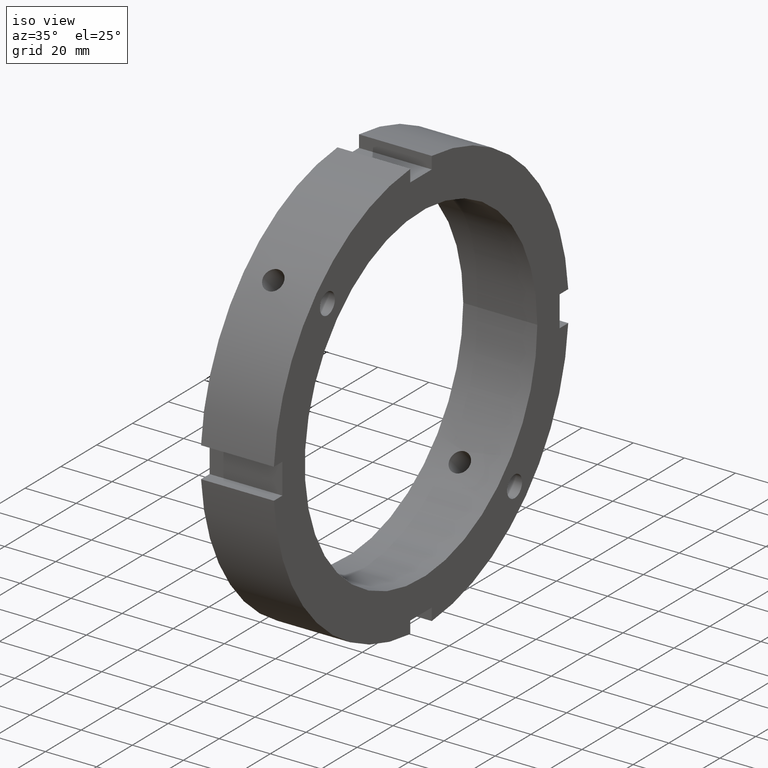
[diagram: clean part render]
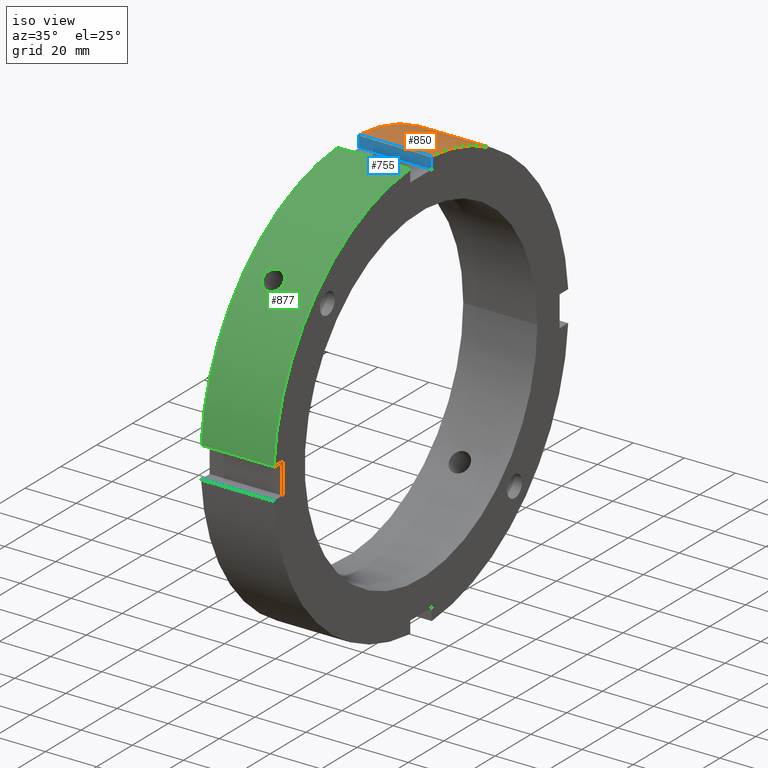
[diagram: same view with three faces highlighted in distinct colors, each labeled with its STEP entity id]
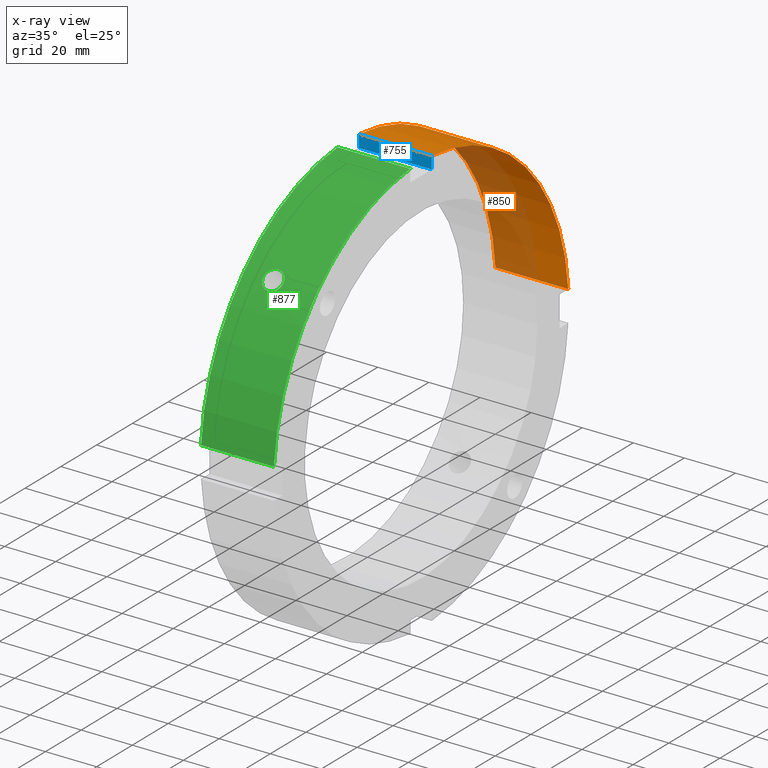
[diagram: x-ray of the same camera — body ghosted, the three highlighted faces saturated]
A machine part, iso view with three faces highlighted in distinct colors.
The next image is the same camera in x-ray (body ghosted, the three faces saturated) — at least one of them is partly hidden behind the body in this view.
Their STEP definitions:

[orange] entity #850 — the highlighted cylindrical surface (partial cylindrical patch) has radius 82.5 mm, axis along (1, 0, 0).
#723=CARTESIAN_POINT('',(0.499999999999976,6.000000000000002,82.281528911414853));
#724=VERTEX_POINT('',#723);
#739=CARTESIAN_POINT('',(28.999999999999986,6.000000000000002,82.281528911414853));
#740=VERTEX_POINT('',#739);
#747=CARTESIAN_POINT('',(0.499999999999975,6.000000000000002,82.281528911414853));
#748=DIRECTION('',(1.0,0.0,0.0));
#749=VECTOR('',#748,28.500000000000011);
#750=LINE('',#747,#749);
#751=EDGE_CURVE('',#724,#740,#750,.T.);
#818=CARTESIAN_POINT('',(14.74999999999998,0.0,0.0));
#819=DIRECTION('',(1.0,0.0,0.0));
#820=DIRECTION('',(0.0,1.0,0.0));
#821=AXIS2_PLACEMENT_3D('',#818,#819,#820);
#822=CYLINDRICAL_SURFACE('',#821,82.5);
#823=ORIENTED_EDGE('',*,*,#751,.T.);
#824=CARTESIAN_POINT('',(28.999999999999986,82.281528911414853,5.999999999999996));
#825=VERTEX_POINT('',#824);
#826=CARTESIAN_POINT('',(28.999999999999986,0.0,0.0));
#827=DIRECTION('',(1.0,0.0,0.0));
#828=DIRECTION('',(0.0,1.0,0.0));
#829=AXIS2_PLACEMENT_3D('',#826,#827,#828);
#830=CIRCLE('',#829,82.5);
#831=EDGE_CURVE('',#825,#740,#830,.T.);
#832=ORIENTED_EDGE('',*,*,#831,.F.);
#833=CARTESIAN_POINT('',(0.499999999999976,82.281528911414853,5.999999999999996));
#834=VERTEX_POINT('',#833);
#835=CARTESIAN_POINT('',(28.999999999999986,82.281528911414853,5.999999999999996));
#836=DIRECTION('',(-1.0,0.0,0.0));
#837=VECTOR('',#836,28.500000000000011);
#838=LINE('',#835,#837);
#839=EDGE_CURVE('',#825,#834,#838,.T.);
#840=ORIENTED_EDGE('',*,*,#839,.T.);
#841=CARTESIAN_POINT('',(0.499999999999976,0.0,0.0));
#842=DIRECTION('',(1.0,0.0,0.0));
#843=DIRECTION('',(0.0,1.0,0.0));
#844=AXIS2_PLACEMENT_3D('',#841,#842,#843);
#845=CIRCLE('',#844,82.5);
#846=EDGE_CURVE('',#834,#724,#845,.T.);
#847=ORIENTED_EDGE('',*,*,#846,.T.);
#848=EDGE_LOOP('',(#823,#832,#840,#847));
#849=FACE_OUTER_BOUND('',#848,.T.);
#850=ADVANCED_FACE('',(#849),#822,.T.);

[blue] entity #755 — the highlighted planar face has unit normal (0, 1, 0).
#716=CARTESIAN_POINT('',(28.999999999999986,6.000000000000001,77.5));
#717=DIRECTION('',(0.0,1.0,0.0));
#718=DIRECTION('',(-1.0,0.0,0.0));
#719=AXIS2_PLACEMENT_3D('',#716,#717,#718);
#720=PLANE('',#719);
#721=CARTESIAN_POINT('',(0.49999999999998,6.000000000000001,77.5));
#722=VERTEX_POINT('',#721);
#723=CARTESIAN_POINT('',(0.499999999999976,6.000000000000002,82.281528911414853));
#724=VERTEX_POINT('',#723);
#725=CARTESIAN_POINT('',(0.499999999999978,5.999999999999995,77.5));
#726=DIRECTION('',(0.0,0.0,1.0));
#727=VECTOR('',#726,4.781528911414853);
#728=LINE('',#725,#727);
#729=EDGE_CURVE('',#722,#724,#728,.T.);
#730=ORIENTED_EDGE('',*,*,#729,.F.);
#731=CARTESIAN_POINT('',(28.999999999999986,6.000000000000001,77.5));
#732=VERTEX_POINT('',#731);
#733=CARTESIAN_POINT('',(28.999999999999986,6.000000000000001,77.5));
#734=DIRECTION('',(-1.0,0.0,0.0));
#735=VECTOR('',#734,28.500000000000007);
#736=LINE('',#733,#735);
#737=EDGE_CURVE('',#732,#722,#736,.T.);
#738=ORIENTED_EDGE('',*,*,#737,.F.);
#739=CARTESIAN_POINT('',(28.999999999999986,6.000000000000002,82.281528911414853));
#740=VERTEX_POINT('',#739);
#741=CARTESIAN_POINT('',(28.999999999999986,5.999999999999995,82.281528911414853));
#742=DIRECTION('',(0.0,0.0,-1.0));
#743=VECTOR('',#742,4.781528911414853);
#744=LINE('',#741,#743);
#745=EDGE_CURVE('',#740,#732,#744,.T.);
#746=ORIENTED_EDGE('',*,*,#745,.F.);
#747=CARTESIAN_POINT('',(0.499999999999975,6.000000000000002,82.281528911414853));
#748=DIRECTION('',(1.0,0.0,0.0));
#749=VECTOR('',#748,28.500000000000011);
#750=LINE('',#747,#749);
#751=EDGE_CURVE('',#724,#740,#750,.T.);
#752=ORIENTED_EDGE('',*,*,#751,.F.);
#753=EDGE_LOOP('',(#730,#738,#746,#752));
#754=FACE_OUTER_BOUND('',#753,.T.);
#755=ADVANCED_FACE('',(#754),#720,.F.);

[green] entity #877 — the highlighted cylindrical surface (partial cylindrical patch) has radius 82.5 mm, axis along (1, 0, 0).
#201=CARTESIAN_POINT('',(11.999999999999989,-61.062478424162236,55.476334852788554));
#202=VERTEX_POINT('',#201);
#203=CARTESIAN_POINT('',(11.999999999999989,-61.062478424162229,55.476334852788554));
#204=CARTESIAN_POINT('',(11.503947800822555,-61.062478424162229,55.476334852788554));
#205=CARTESIAN_POINT('',(10.974883153584518,-60.995860655348324,55.549938723222951));
#206=CARTESIAN_POINT('',(10.001707218843947,-60.723422382487882,55.847620212128575));
#207=CARTESIAN_POINT('',(9.55758950625345,-60.51742318316721,56.071513228306046));
#208=CARTESIAN_POINT('',(8.856266984643291,-60.038312138560698,56.584222005358328));
#209=CARTESIAN_POINT('',(8.552287237655428,-59.733215904459072,56.907203104077304));
#210=CARTESIAN_POINT('',(8.149151646845423,-59.057687911437881,57.607953842950124));
#211=CARTESIAN_POINT('',(8.049999999999985,-58.687071259462641,57.985547636317705));
#212=CARTESIAN_POINT('',(8.049999999999992,-57.985547636317619,58.687071259462719));
#213=CARTESIAN_POINT('',(8.149151646845438,-57.607953842950025,59.057687911437959));
#214=CARTESIAN_POINT('',(8.552287237655463,-56.90720310407719,59.733215904459165));
#215=CARTESIAN_POINT('',(8.856266984643286,-56.584222005358214,60.038312138560812));
#216=CARTESIAN_POINT('',(9.557589506253457,-56.071513228305946,60.517423183167324));
#217=CARTESIAN_POINT('',(10.001707218843981,-55.847620212128504,60.723422382487946));
#218=CARTESIAN_POINT('',(10.974883153584546,-55.549938723222894,60.995860655348373));
#219=CARTESIAN_POINT('',(11.503947800822562,-55.476334852788497,61.0624784241623));
#220=CARTESIAN_POINT('',(12.496052199177416,-55.476334852788497,61.062478424162308));
#221=CARTESIAN_POINT('',(13.025116846415441,-55.549938723222894,60.99586065534838));
#222=CARTESIAN_POINT('',(13.998292781156007,-55.847620212128504,60.723422382487954));
#223=CARTESIAN_POINT('',(14.442410493746522,-56.071513228305946,60.517423183167331));
#224=CARTESIAN_POINT('',(15.143733015356693,-56.584222005358214,60.038312138560812));
#225=CARTESIAN_POINT('',(15.447712762344519,-56.907203104077198,59.733215904459165));
#226=CARTESIAN_POINT('',(15.850848353154543,-57.607953842950025,59.057687911437959));
#227=CARTESIAN_POINT('',(15.949999999999985,-57.985547636317619,58.687071259462719));
#228=CARTESIAN_POINT('',(15.949999999999992,-58.687071259462641,57.985547636317705));
#229=CARTESIAN_POINT('',(15.850848353154554,-59.057687911437867,57.607953842950138));
#230=CARTESIAN_POINT('',(15.447712762344549,-59.733215904459072,56.907203104077304));
#231=CARTESIAN_POINT('',(15.143733015356688,-60.038312138560705,56.584222005358328));
#232=CARTESIAN_POINT('',(14.442410493746527,-60.51742318316721,56.071513228306046));
#233=CARTESIAN_POINT('',(13.998292781156024,-60.723422382487882,55.847620212128568));
#234=CARTESIAN_POINT('',(13.025116846415457,-60.995860655348309,55.549938723222951));
#235=CARTESIAN_POINT('',(12.496052199177418,-61.062478424162222,55.476334852788554));
#236=CARTESIAN_POINT('',(11.999999999999986,-61.062478424162222,55.476334852788554));
#237=B_SPLINE_CURVE_WITH_KNOTS('',3,(#203,#204,#205,#206,#207,#208,#209,#210,#211,#212,#213,#214,#215,#216,#217,#218,#219,#220,#221,#222,#223,#224,#225,#226,#227,#228,#229,#230,#231,#232,#233,#234,#235,#236),.UNSPECIFIED.,.T.,.U.,(4,2,2,2,2,2,2,2,2,2,2,2,2,2,2,2,4),(0.0,0.14881565975323,0.297631319506459,0.446446952832977,0.595262586159495,0.744078219486015,0.892893852812535,1.041709512565763,1.190525172318991,1.339340832072219,1.488156491825447,1.636972125151968,1.785787758478488,1.934603391805005,2.083419025131523,2.232234684884753,2.381050344637982),.UNSPECIFIED.);
#238=EDGE_CURVE('',#202,#202,#237,.T.);
#621=CARTESIAN_POINT('',(0.499999999999976,-82.281528911414853,6.000000000000007));
#622=VERTEX_POINT('',#621);
#637=CARTESIAN_POINT('',(28.999999999999986,-82.281528911414853,6.000000000000007));
#638=VERTEX_POINT('',#637);
#645=CARTESIAN_POINT('',(0.499999999999975,-82.281528911414853,6.000000000000006));
#646=DIRECTION('',(1.0,0.0,0.0));
#647=VECTOR('',#646,28.500000000000011);
#648=LINE('',#645,#647);
#649=EDGE_CURVE('',#622,#638,#648,.T.);
#761=CARTESIAN_POINT('',(0.499999999999976,-5.999999999999991,82.281528911414853));
#762=VERTEX_POINT('',#761);
#771=CARTESIAN_POINT('',(28.999999999999986,-5.999999999999991,82.281528911414853));
#772=VERTEX_POINT('',#771);
#773=CARTESIAN_POINT('',(28.999999999999986,-5.999999999999991,82.281528911414853));
#774=DIRECTION('',(-1.0,0.0,0.0));
#775=VECTOR('',#774,28.500000000000011);
#776=LINE('',#773,#775);
#777=EDGE_CURVE('',#772,#762,#776,.T.);
#851=CARTESIAN_POINT('',(14.74999999999998,0.0,0.0));
#852=DIRECTION('',(1.0,0.0,0.0));
#853=DIRECTION('',(0.0,1.0,0.0));
#854=AXIS2_PLACEMENT_3D('',#851,#852,#853);
#855=CYLINDRICAL_SURFACE('',#854,82.5);
#856=ORIENTED_EDGE('',*,*,#649,.T.);
#857=CARTESIAN_POINT('',(28.999999999999986,0.0,0.0));
#858=DIRECTION('',(1.0,0.0,0.0));
#859=DIRECTION('',(0.0,1.0,0.0));
#860=AXIS2_PLACEMENT_3D('',#857,#858,#859);
#861=CIRCLE('',#860,82.5);
#862=EDGE_CURVE('',#772,#638,#861,.T.);
#863=ORIENTED_EDGE('',*,*,#862,.F.);
#864=ORIENTED_EDGE('',*,*,#777,.T.);
#865=CARTESIAN_POINT('',(0.499999999999976,0.0,0.0));
#866=DIRECTION('',(1.0,0.0,0.0));
#867=DIRECTION('',(0.0,1.0,0.0));
#868=AXIS2_PLACEMENT_3D('',#865,#866,#867);
#869=CIRCLE('',#868,82.5);
#870=EDGE_CURVE('',#762,#622,#869,.T.);
#871=ORIENTED_EDGE('',*,*,#870,.T.);
#872=EDGE_LOOP('',(#856,#863,#864,#871));
#873=FACE_OUTER_BOUND('',#872,.T.);
#874=ORIENTED_EDGE('',*,*,#238,.T.);
#875=EDGE_LOOP('',(#874));
#876=FACE_BOUND('',#875,.T.);
#877=ADVANCED_FACE('',(#873,#876),#855,.T.);